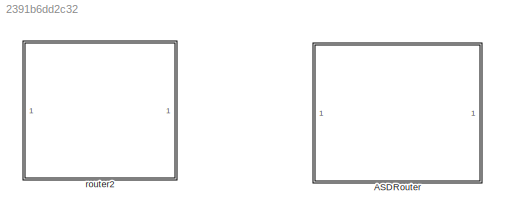
MODEL slx_2391b6dd2c32
KIND library
CONFIG AbsTol = auto
CONFIG EnableMultiTasking = off
CONFIG FixedStep = auto
CONFIG MaxStep = auto
CONFIG MinStep = auto
CONFIG RelTol = 1e-3
CONFIG SampleTimeConstraint = Unconstrained
CONFIG SolverName = VariableStepAuto
CONFIG StartTime = 0.0
CONFIG StopTime = 10.0
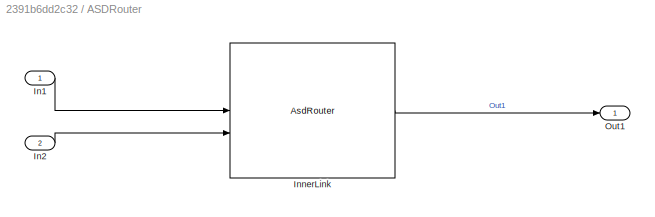
BLOCK [SubSystem] ASDRouter
BLOCK [Inport] ASDRouter/In1
BLOCK [Inport] ASDRouter/In2
  Port = 2
BLOCK [Reference] ASDRouter/InnerLink  REF=AsdRouterBtc/AsdRouter
  SourceBlock = AsdRouterBtc/AsdRouter
  SourceProductName = Bose Blocklib
  SourceType = Blocklib AsdRouter
BLOCK [Outport] ASDRouter/Out1
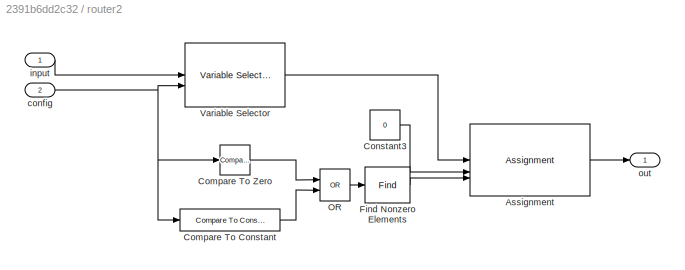
BLOCK [SubSystem] router2
BLOCK [Assignment] router2/Assignment
  DiagnosticForDimensions = Warning
  IndexOptions = Assign all,Index vector (port)
  Indices = 1,[1 3]
  NumberOfDimensions = 2
  OutputSizes = 1,1
BLOCK [Reference] router2/Compare To Constant  REF=simulink/Logic and Bit
Operations/Compare
To Constant
  SourceBlock = simulink/Logic and Bit\nOperations/Compare\nTo Constant
  SourceType = Compare To Constant
BLOCK [Reference] router2/Compare To Zero  REF=simulink/Logic and Bit
Operations/Compare
To Zero
  SourceBlock = simulink/Logic and Bit\nOperations/Compare\nTo Zero
  SourceType = Compare To Zero
BLOCK [Constant] router2/Constant3
  OutDataTypeStr = single
  Value = 0
BLOCK [Find] router2/Find Nonzero Elements
  NumberOfInputDimensions = 3
BLOCK [Logic] router2/OR
  AllPortsSameDT = off
  IconShape = distinctive
  Operator = OR
  OutDataTypeStr = boolean
BLOCK [Reference] router2/Variable Selector  REF=dspindex/Variable
Selector
  SourceBlock = dspindex/Variable\nSelector
  SourceType = Variable Selector
BLOCK [Inport] router2/config
  Port = 2
BLOCK [Inport] router2/input
BLOCK [Outport] router2/out
  VectorParamsAs1DForOutWhenUnconnected = off
LINE router2/Assignment:1 -> router2/out:1
LINE router2/Compare To Constant:1 -> router2/OR:2
LINE router2/Compare To Zero:1 -> router2/OR:1
LINE router2/Constant3:1 -> router2/Assignment:2
LINE router2/Find Nonzero Elements:1 -> router2/Assignment:3
LINE router2/OR:1 -> router2/Find Nonzero Elements:1
LINE router2/Variable Selector:1 -> router2/Assignment:1
NET router2/config:1 -> router2/Compare To Constant:1, router2/Compare To Zero:1, router2/Variable Selector:2
LINE router2/input:1 -> router2/Variable Selector:1
note: NET lines group one-source signal fan-out (src -> all destinations, sorted); 1:1 wires keep LINE
